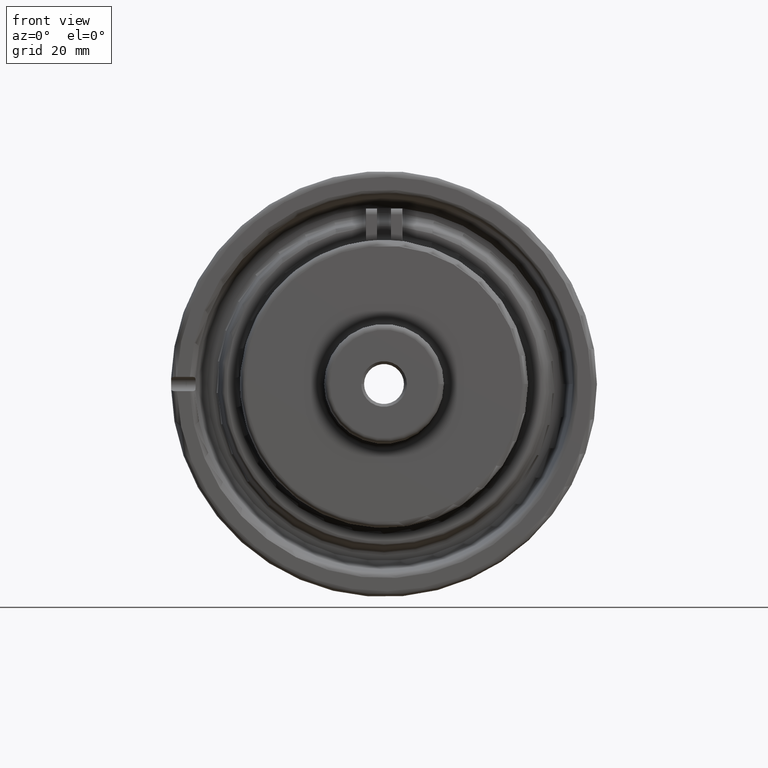
[diagram: clean part render]
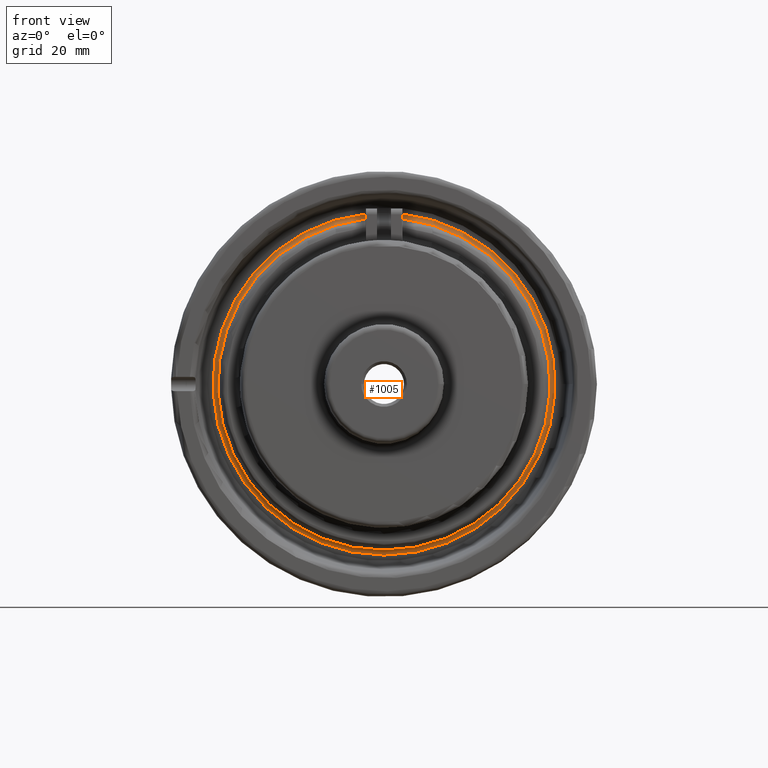
[diagram: same view with one face highlighted and labeled with its STEP entity id]
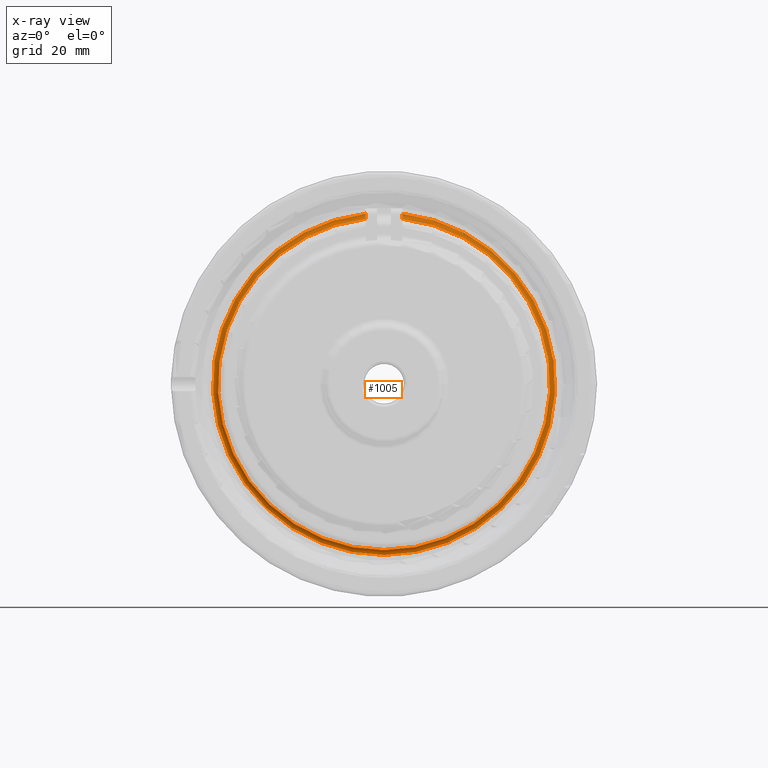
[diagram: x-ray of the same camera — body ghosted, the highlighted face saturated]
A machine part, front view. The second image highlights one B-rep face of the part: STEP entity #1005.
The next image is the same camera in x-ray: the body ghosted, the highlighted face saturated — about 0% of this face is hidden behind the body in this view.
In plain terms, the highlighted toroidal blend (fillet) surface has major radius 59.9821 mm and minor (blend) radius 2 mm.
Its self-contained STEP definition (entity closure, byte-faithful):
#22=B_SPLINE_CURVE_WITH_KNOTS('',3,(#1524,#1525,#1526,#1527,#1528,#1529,
#1530,#1531),.UNSPECIFIED.,.F.,.F.,(4,2,2,4),(0.297019758898766,0.371636137086852,
0.446044335371985,0.494163873795746),.UNSPECIFIED.);
#29=B_SPLINE_CURVE_WITH_KNOTS('',3,(#1642,#1643,#1644,#1645,#1646,#1647,
#1648,#1649),.UNSPECIFIED.,.F.,.F.,(4,2,2,4),(0.694012621773328,0.74213216019709,
0.816540358482223,0.89115673667031),.UNSPECIFIED.);
#252=FACE_OUTER_BOUND('',#322,.T.);
#322=EDGE_LOOP('',(#799,#800,#801,#802));
#412=CIRCLE('',#1089,58.2545161964447);
#415=CIRCLE('',#1094,59.9820739982416);
#463=VERTEX_POINT('',#1519);
#464=VERTEX_POINT('',#1523);
#488=VERTEX_POINT('',#1639);
#489=VERTEX_POINT('',#1641);
#564=EDGE_CURVE('',#464,#463,#22,.T.);
#596=EDGE_CURVE('',#489,#488,#29,.T.);
#610=EDGE_CURVE('',#463,#489,#412,.T.);
#613=EDGE_CURVE('',#488,#464,#415,.T.);
#799=ORIENTED_EDGE('',*,*,#564,.T.);
#800=ORIENTED_EDGE('',*,*,#610,.T.);
#801=ORIENTED_EDGE('',*,*,#596,.T.);
#802=ORIENTED_EDGE('',*,*,#613,.T.);
#970=TOROIDAL_SURFACE('',#1096,59.9820739982416,2.);
#1005=ADVANCED_FACE('',(#252),#970,.F.);
#1089=AXIS2_PLACEMENT_3D('',#1692,#1279,#1280);
#1094=AXIS2_PLACEMENT_3D('',#1698,#1289,#1290);
#1096=AXIS2_PLACEMENT_3D('',#1700,#1293,#1294);
#1279=DIRECTION('center_axis',(-7.62325805526414E-17,1.,7.62325805526414E-17));
#1280=DIRECTION('ref_axis',(-1.,-7.62325805526414E-17,0.));
#1289=DIRECTION('center_axis',(1.23614811126766E-16,-1.,0.));
#1290=DIRECTION('ref_axis',(-1.,-1.23614811126766E-16,1.22464679914735E-16));
#1293=DIRECTION('center_axis',(1.23614811126766E-16,-1.,0.));
#1294=DIRECTION('ref_axis',(0.,0.,-1.));
#1519=CARTESIAN_POINT('',(6.4,27.0077420510482,57.9018882013518));
#1523=CARTESIAN_POINT('',(6.39999999999999,28.,59.6396613096564));
#1524=CARTESIAN_POINT('Ctrl Pts',(6.39999999999999,28.,59.6396613096564));
#1525=CARTESIAN_POINT('Ctrl Pts',(6.39999999999999,28.,59.3909400490295));
#1526=CARTESIAN_POINT('Ctrl Pts',(6.39999999999999,27.94200600461,59.0981630711074));
#1527=CARTESIAN_POINT('Ctrl Pts',(6.39999999999999,27.7524702752103,58.6389949459033));
#1528=CARTESIAN_POINT('Ctrl Pts',(6.39999999999999,27.5876264976047,58.3911808854924));
#1529=CARTESIAN_POINT('Ctrl Pts',(6.39999999999999,27.2993578183968,58.1018492527036));
#1530=CARTESIAN_POINT('Ctrl Pts',(6.4,27.1574438399768,57.9897460687875));
#1531=CARTESIAN_POINT('Ctrl Pts',(6.4,27.0077420510482,57.9018882013518));
#1639=CARTESIAN_POINT('',(-6.39999999999999,28.,59.6396613096565));
#1641=CARTESIAN_POINT('',(-6.39999999999999,27.0077420510482,57.9018882013518));
#1642=CARTESIAN_POINT('Ctrl Pts',(-6.39999999999999,27.0077420510482,57.9018882013518));
#1643=CARTESIAN_POINT('Ctrl Pts',(-6.39999999999999,27.1574438399768,57.9897460687875));
#1644=CARTESIAN_POINT('Ctrl Pts',(-6.39999999999999,27.2993578183968,58.1018492527037));
#1645=CARTESIAN_POINT('Ctrl Pts',(-6.39999999999999,27.5876264976047,58.3911808854924));
#1646=CARTESIAN_POINT('Ctrl Pts',(-6.39999999999999,27.7524702752103,58.6389949459033));
#1647=CARTESIAN_POINT('Ctrl Pts',(-6.39999999999999,27.94200600461,59.0981630711074));
#1648=CARTESIAN_POINT('Ctrl Pts',(-6.39999999999999,28.,59.3909400490295));
#1649=CARTESIAN_POINT('Ctrl Pts',(-6.39999999999999,28.,59.6396613096565));
#1692=CARTESIAN_POINT('Origin',(4.44089209850063E-15,27.0077420510482,-7.13412067958537E-15));
#1698=CARTESIAN_POINT('Origin',(-3.4611328266946E-15,28.,0.));
#1700=CARTESIAN_POINT('Origin',(-3.21390320444107E-15,26.,0.));